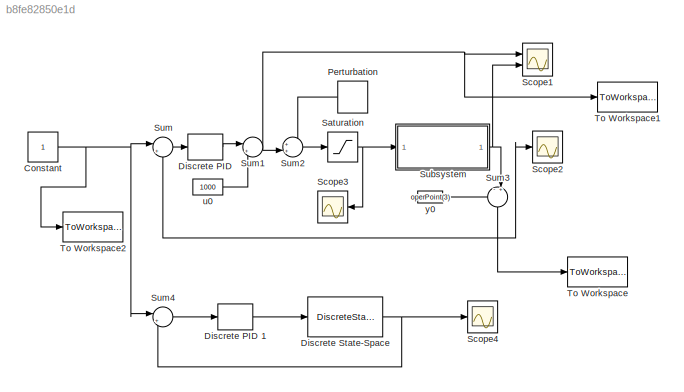
MODEL slx_b8fe82850e1d
KIND model
CONFIG AbsTol = auto
CONFIG EnableMultiTasking = off
CONFIG FixedStep = 0.01
CONFIG MaxStep = 0.2
CONFIG MinStep = auto
CONFIG RelTol = 1e-3
CONFIG SampleTimeConstraint = Unconstrained
CONFIG Solver = ode4
CONFIG SolverName = ode4
CONFIG StartTime = 0.0
CONFIG StopTime = 100
BLOCK [Constant] Constant
BLOCK [DiscreteTransferFcn] Discrete PID 
  Denominator = [1 -1 0]
  InputPortMap = u0
  Numerator = [q0 q1 q2]
  Ports = [1, 1]
  SampleTime = 1
BLOCK [DiscreteTransferFcn] Discrete PID 1
  Denominator = [1 -1 0]
  InputPortMap = u0
  Numerator = [q0 q1 q2]
  Ports = [1, 1]
  SampleTime = 1
BLOCK [DiscreteStateSpace] Discrete State-Space
  A = systemD.A
  B = systemD.B
  C = systemD.C
  D = systemD.D
BLOCK [DiscretePulseGenerator] Perturbation
  Amplitude = 0.1
  Period = 10
  Ports = [0, 1]
  PulseType = Time based
  PulseWidth = 5
BLOCK [Saturate] Saturation
  InputPortMap = u0
  LowerLimit = 0
  Ports = [1, 1]
  UpperLimit = 1500
BLOCK [Scope] Scope1
  Floating = off
  NumInputPorts = 2
  Ports = [2]
  ScopeSpecificationString = Simulink.scopes.TimeScopeBlockCfg('CurrentConfiguration', extmgr.ConfigurationSet(extmgr.Configuration('Core','General UI',true),extmgr.Configuration('Core','Source UI',true),extmgr.Configuration('Sources','WiredSimulink',true,'DataLoggingVariableName','ScopeData1'),extmgr.Configuration('Visuals','Time Domain',true,'SerializedDisplays',{struct('MinYLimReal','-28080.32821','MaxYLimReal','4231.14758...<+1430ch>
BLOCK [Scope] Scope2
  Floating = off
  NumInputPorts = 1
  Ports = [1]
  ScopeSpecificationString = Simulink.scopes.TimeScopeBlockCfg('CurrentConfiguration', extmgr.ConfigurationSet(extmgr.Configuration('Core','General UI',true),extmgr.Configuration('Core','Source UI',true),extmgr.Configuration('Sources','WiredSimulink',true,'DataLoggingVariableName','ScopeData2'),extmgr.Configuration('Visuals','Time Domain',true,'SerializedDisplays',{struct('MinYLimReal','-3.30061','MaxYLimReal','4.17365','YLab...<+1434ch>
BLOCK [Scope] Scope3
  Floating = off
  NumInputPorts = 1
  Ports = [1]
  ScopeSpecificationString = Simulink.scopes.TimeScopeBlockCfg('CurrentConfiguration', extmgr.ConfigurationSet(extmgr.Configuration('Core','General UI',true),extmgr.Configuration('Core','Source UI',true),extmgr.Configuration('Sources','WiredSimulink',true,'DataLoggingVariableName','ScopeData3'),extmgr.Configuration('Visuals','Time Domain',true,'SerializedDisplays',{struct('MinYLimReal','250.00000','MaxYLimReal','2250.00000','...<+1458ch>
BLOCK [Scope] Scope4
  Floating = off
  NumInputPorts = 1
  Ports = [1]
  ScopeSpecificationString = Simulink.scopes.TimeScopeBlockCfg('CurrentConfiguration', extmgr.ConfigurationSet(extmgr.Configuration('Core','General UI',true),extmgr.Configuration('Core','Source UI',true),extmgr.Configuration('Sources','WiredSimulink',true,'DataLoggingVariableName','ScopeData1'),extmgr.Configuration('Visuals','Time Domain',true,'SerializedDisplays',{struct('MinYLimReal','-22805448363862324942014860956472405333...<+2350ch>
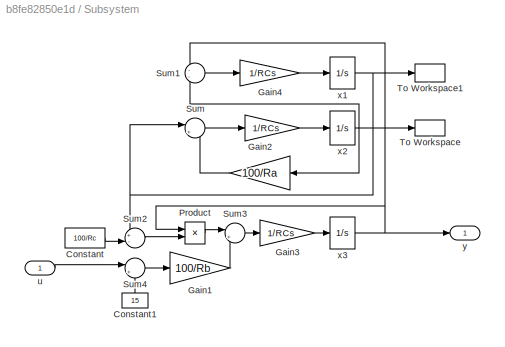
BLOCK [SubSystem] Subsystem
  Ports = [1, 1]
  RequestExecContextInheritance = off
BLOCK [Gain] Subsystem/ 
  Gain = 1/RCs
  OutDataTypeStr = Inherit: Inherit via internal rule
  ParamDataTypeStr = Inherit: Inherit via internal rule
  SaturateOnIntegerOverflow = off
BLOCK [Constant] Subsystem/Constant
  Value = 100/Rc
BLOCK [Constant] Subsystem/Constant1
  Value = 15
BLOCK [Gain] Subsystem/Gain1
  Gain = 100/Rb
  OutDataTypeStr = Inherit: Inherit via internal rule
  ParamDataTypeStr = Inherit: Inherit via internal rule
  SaturateOnIntegerOverflow = off
BLOCK [Gain] Subsystem/Gain2
  Gain = 100/Ra
  OutDataTypeStr = Inherit: Inherit via internal rule
  ParamDataTypeStr = Inherit: Inherit via internal rule
  SaturateOnIntegerOverflow = off
BLOCK [Gain] Subsystem/Gain3
  Gain = 1/RCs
  OutDataTypeStr = Inherit: Inherit via internal rule
  ParamDataTypeStr = Inherit: Inherit via internal rule
  SaturateOnIntegerOverflow = off
BLOCK [Gain] Subsystem/Gain4
  Gain = 1/RCs
  OutDataTypeStr = Inherit: Inherit via internal rule
  ParamDataTypeStr = Inherit: Inherit via internal rule
  SaturateOnIntegerOverflow = off
BLOCK [Product] Subsystem/Product
  InputSameDT = off
  OutDataTypeStr = Inherit: Inherit via internal rule
  Ports = [2, 1]
  RndMeth = Floor
  SaturateOnIntegerOverflow = off
BLOCK [Sum] Subsystem/Sum
  IconShape = round
  InputSameDT = off
  Inputs = |++
  OutDataTypeStr = Inherit: Inherit via internal rule
  Ports = [2, 1]
  SaturateOnIntegerOverflow = off
BLOCK [Sum] Subsystem/Sum1
  IconShape = round
  InputSameDT = off
  Inputs = --
  OutDataTypeStr = Inherit: Inherit via internal rule
  Ports = [2, 1]
  SaturateOnIntegerOverflow = off
BLOCK [Sum] Subsystem/Sum2
  IconShape = round
  InputSameDT = off
  Inputs = +-|
  OutDataTypeStr = Inherit: Inherit via internal rule
  Ports = [2, 1]
  SaturateOnIntegerOverflow = off
BLOCK [Sum] Subsystem/Sum3
  IconShape = round
  InputSameDT = off
  Inputs = |++
  OutDataTypeStr = Inherit: Inherit via internal rule
  Ports = [2, 1]
  SaturateOnIntegerOverflow = off
BLOCK [Sum] Subsystem/Sum4
  IconShape = round
  InputSameDT = off
  Inputs = |++
  OutDataTypeStr = Inherit: Inherit via internal rule
  Ports = [2, 1]
  SaturateOnIntegerOverflow = off
BLOCK [ToWorkspace] Subsystem/To Workspace
  FixptAsFi = on
  MaxDataPoints = inf
  Ports = [1]
  SampleTime = -1
  VariableName = x2
BLOCK [ToWorkspace] Subsystem/To Workspace1
  FixptAsFi = on
  MaxDataPoints = inf
  Ports = [1]
  SampleTime = -1
  VariableName = x1
BLOCK [Inport] Subsystem/u
  IconDisplay = Port number
BLOCK [Integrator] Subsystem/x1
  InitialCondition = x10
  Ports = [1, 1]
BLOCK [Integrator] Subsystem/x2
  InitialCondition = x20
  Ports = [1, 1]
BLOCK [Integrator] Subsystem/x3 
  InitialCondition = y0
  Ports = [1, 1]
BLOCK [Outport] Subsystem/y 
  IconDisplay = Port number
BLOCK [Sum] Sum
  IconShape = round
  InputSameDT = off
  Inputs = |+-
  OutDataTypeStr = Inherit: Inherit via internal rule
  Ports = [2, 1]
  SaturateOnIntegerOverflow = off
BLOCK [Sum] Sum1
  IconShape = round
  InputSameDT = off
  Inputs = |++
  OutDataTypeStr = Inherit: Inherit via internal rule
  Ports = [2, 1]
  SaturateOnIntegerOverflow = off
BLOCK [Sum] Sum2
  IconShape = round
  InputSameDT = off
  Inputs = ++|
  OutDataTypeStr = Inherit: Inherit via internal rule
  Ports = [2, 1]
  SaturateOnIntegerOverflow = off
BLOCK [Sum] Sum3
  IconShape = round
  InputSameDT = off
  Inputs = -+|
  OutDataTypeStr = Inherit: Inherit via internal rule
  Ports = [2, 1]
  SaturateOnIntegerOverflow = off
BLOCK [Sum] Sum4
  IconShape = round
  InputSameDT = off
  Inputs = |+-
  OutDataTypeStr = Inherit: Inherit via internal rule
  Ports = [2, 1]
  SaturateOnIntegerOverflow = off
BLOCK [ToWorkspace] To Workspace
  FixptAsFi = on
  MaxDataPoints = inf
  Ports = [1]
  SampleTime = -1
  VariableName = y
BLOCK [ToWorkspace] To Workspace1
  FixptAsFi = on
  MaxDataPoints = inf
  Ports = [1]
  SampleTime = 0.01
  VariableName = cont
BLOCK [ToWorkspace] To Workspace2
  FixptAsFi = on
  MaxDataPoints = inf
  Ports = [1]
  SampleTime = -1
  VariableName = us
BLOCK [Constant] u0 
  Value = 1000
BLOCK [Constant] y0
  Value = operPoint(3)
NET Constant:1 -> Sum4:1, Sum:1, To Workspace2:1
LINE Discrete PID 1:1 -> Discrete State-Space:1
LINE Discrete PID :1 -> Sum1:1
NET Discrete State-Space:1 -> Scope4:1, Sum4:2
LINE Perturbation:1 -> Sum2:1
NET Saturation:1 -> Scope3:1, Subsystem:1
LINE Subsystem/ :1 -> Subsystem/x2:1
LINE Subsystem/Constant1:1 -> Subsystem/Sum4:2
LINE Subsystem/Constant:1 -> Subsystem/Sum2:2
LINE Subsystem/Gain1:1 -> Subsystem/Sum3:2
LINE Subsystem/Gain2:1 -> Subsystem/Sum:2
LINE Subsystem/Gain3:1 -> Subsystem/x3 :1
LINE Subsystem/Gain4:1 -> Subsystem/x1:1
LINE Subsystem/Product:1 -> Subsystem/Sum3:1
LINE Subsystem/Sum1:1 -> Subsystem/Gain4:1
LINE Subsystem/Sum2:1 -> Subsystem/Product:2
LINE Subsystem/Sum3:1 -> Subsystem/Gain3:1
LINE Subsystem/Sum4:1 -> Subsystem/Gain1:1
LINE Subsystem/Sum:1 -> Subsystem/ :1
LINE Subsystem/u:1 -> Subsystem/Sum4:1
NET Subsystem/x1:1 -> Subsystem/Sum2:1, Subsystem/Sum:1, Subsystem/To Workspace1:1
NET Subsystem/x2:1 -> Subsystem/Gain2:1, Subsystem/Sum1:2, Subsystem/To Workspace:1
NET Subsystem/x3 :1 -> Subsystem/Product:1, Subsystem/Sum1:1, Subsystem/y :1
NET Subsystem:1 -> Scope1:2, Sum3:2
NET Sum1:1 -> Scope1:1, Sum2:2, To Workspace1:1
LINE Sum2:1 -> Saturation:1
NET Sum3:1 -> Scope2:1, Sum:2, To Workspace:1
LINE Sum4:1 -> Discrete PID 1:1
LINE Sum:1 -> Discrete PID :1
LINE u0 :1 -> Sum1:2
LINE y0:1 -> Sum3:1
note: NET lines group one-source signal fan-out (src -> all destinations, sorted); 1:1 wires keep LINE
